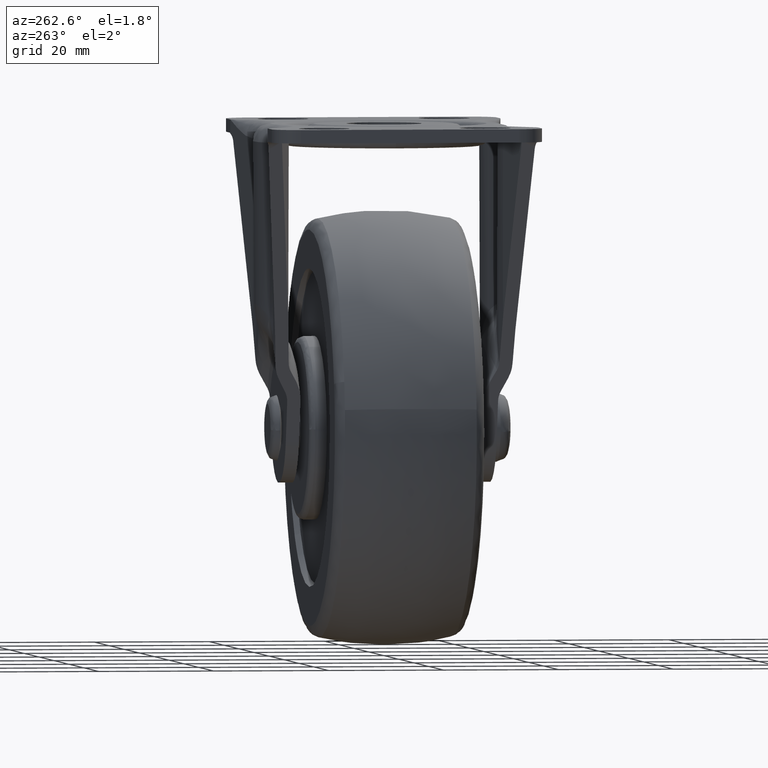
[diagram: clean part render]
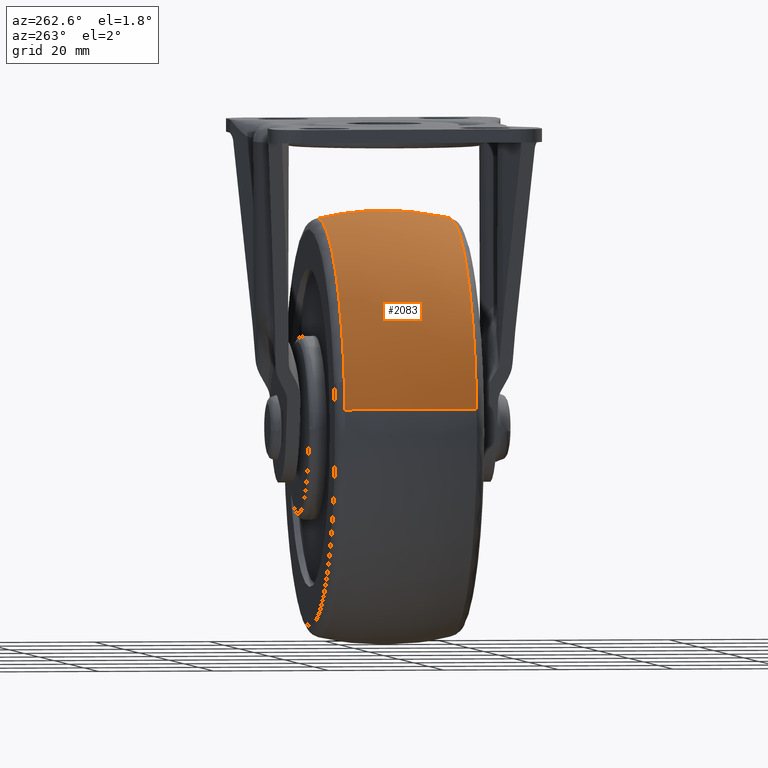
[diagram: same view with one face highlighted and labeled with its STEP entity id]
A machine part, auxiliary view. The second image highlights one B-rep face of the part: STEP entity #2083.
In plain terms, the highlighted face is a freeform B-spline surface patch.
Its self-contained STEP definition (entity closure, byte-faithful):
#1360=CARTESIAN_POINT('',(0.0,-11.458319213523890,36.169360494402703));
#1361=VERTEX_POINT('',#1360);
#1378=CARTESIAN_POINT('',(-35.927446050433097,-11.458332729247150,4.176245764173122));
#1379=VERTEX_POINT('',#1378);
#1380=CARTESIAN_POINT('',(0.0,-11.458319213523890,36.169360494402703));
#1381=CARTESIAN_POINT('',(-2.672624214457082,-11.458319774181490,36.169903045080943));
#1382=CARTESIAN_POINT('',(-6.372870764637457,-11.458320627642880,35.757297927996227));
#1383=CARTESIAN_POINT('',(-11.338458865450351,-11.458321920616161,34.413287868929359));
#1384=CARTESIAN_POINT('',(-15.311939682345640,-11.458323039353431,32.887711416428608));
#1385=CARTESIAN_POINT('',(-19.472442577682550,-11.458324337141541,30.613839318725329));
#1386=CARTESIAN_POINT('',(-23.668584247535520,-11.458325797149559,27.511762600803930));
#1387=CARTESIAN_POINT('',(-26.996166241133011,-11.458327108755340,24.228585835741040));
#1388=CARTESIAN_POINT('',(-29.735471740514551,-11.458328341139200,20.708804262151698));
#1389=CARTESIAN_POINT('',(-31.945799160597680,-11.458329469151620,17.153608198579551));
#1390=CARTESIAN_POINT('',(-33.852219878282703,-11.458330637621749,13.040597614560060));
#1391=CARTESIAN_POINT('',(-35.234169530759857,-11.458331761004510,8.579929816808301));
#1392=CARTESIAN_POINT('',(-35.761320739403693,-11.458332427313680,5.605700362971515));
#1393=CARTESIAN_POINT('',(-35.927446050433097,-11.458332729247150,4.176245764173122));
#1394=B_SPLINE_CURVE_WITH_KNOTS('',3,(#1380,#1381,#1382,#1383,#1384,#1385,#1386,#1387,#1388,#1389,#1390,#1391,#1392,#1393),.UNSPECIFIED.,.F.,.U.,(4,1,1,1,1,1,1,1,1,1,1,4),(0.000000072982743,8.017704731846230,11.101464351653640,15.418711195747560,20.763862513856679,25.286729429481721,31.042964045127441,34.743480242906017,38.649553353459531,43.583543833607500,48.311954133890552,52.629184124738742),.UNSPECIFIED.);
#1395=EDGE_CURVE('',#1361,#1379,#1394,.T.);
#1802=CARTESIAN_POINT('',(-35.033026644352752,11.458343053248250,8.994952413896838));
#1803=VERTEX_POINT('',#1802);
#1814=CARTESIAN_POINT('',(0.0,11.458330712476220,36.169357787185191));
#1815=VERTEX_POINT('',#1814);
#1816=CARTESIAN_POINT('',(0.0,11.458330712476220,36.169357787185191));
#1817=CARTESIAN_POINT('',(-1.677809546960960,11.458331061580820,36.169427508947869));
#1818=CARTESIAN_POINT('',(-5.033408185752237,11.458331803301251,35.935458703686962));
#1819=CARTESIAN_POINT('',(-9.725752756103267,11.458332964431680,34.941525226016509));
#1820=CARTESIAN_POINT('',(-14.483424526617039,11.458334264843121,33.271406223215173));
#1821=CARTESIAN_POINT('',(-19.080640699729351,11.458335662771431,30.897040048661310));
#1822=CARTESIAN_POINT('',(-23.758617655831198,11.458337272012839,27.476240529102199));
#1823=CARTESIAN_POINT('',(-28.187125556806912,11.458339026129551,22.996765045969848));
#1824=CARTESIAN_POINT('',(-31.648066935077509,11.458340698670909,17.873022957422680));
#1825=CARTESIAN_POINT('',(-33.851679530021862,11.458342064820060,12.990121713626049));
#1826=CARTESIAN_POINT('',(-34.723961804688727,11.458342765182490,10.198730289506990));
#1827=CARTESIAN_POINT('',(-35.033026644352752,11.458343053248250,8.994952413896838));
#1828=B_SPLINE_CURVE_WITH_KNOTS('',3,(#1816,#1817,#1818,#1819,#1820,#1821,#1822,#1823,#1824,#1825,#1826,#1827),.UNSPECIFIED.,.F.,.U.,(4,1,1,1,1,1,1,1,1,4),(0.000000059164343,5.033424796128323,10.066861892009170,14.354614490978580,20.133736255185930,25.539960770085081,31.691976477638519,38.962493466693630,43.995925213602092,47.724393048889262),.UNSPECIFIED.);
#1829=EDGE_CURVE('',#1815,#1803,#1828,.T.);
#1923=CARTESIAN_POINT('',(-35.927443297534452,11.458344444486150,4.176245559265347));
#1924=VERTEX_POINT('',#1923);
#1942=CARTESIAN_POINT('',(-35.033026644352752,11.458343053248250,8.994952413896838));
#1943=CARTESIAN_POINT('',(-35.439651283735067,11.458343535668011,7.411401983019481));
#1944=CARTESIAN_POINT('',(-35.738716637749640,11.458344000839009,5.800240179631593));
#1945=CARTESIAN_POINT('',(-35.927443297534452,11.458344444486150,4.176245559265347));
#1946=B_SPLINE_CURVE_WITH_KNOTS('',3,(#1942,#1943,#1944,#1945),.UNSPECIFIED.,.F.,.U.,(4,4),(4.617222E-010,4.904783692449575),.UNSPECIFIED.);
#1947=EDGE_CURVE('',#1803,#1924,#1946,.T.);
#2025=CARTESIAN_POINT('',(-35.927446050433097,-11.458332729247150,4.176245764173122));
#2026=CARTESIAN_POINT('',(-36.311247354735933,-9.817216051742529,4.220859486868710));
#2027=CARTESIAN_POINT('',(-37.021412826691169,-5.902755864638715,4.303410345270322));
#2028=CARTESIAN_POINT('',(-37.374721924107128,-0.119520687760993,4.344479622932257));
#2029=CARTESIAN_POINT('',(-37.006949031075123,5.899356566889257,4.301729108413988));
#2030=CARTESIAN_POINT('',(-36.366108217801077,9.582786183331022,4.227236704055301));
#2031=CARTESIAN_POINT('',(-35.927443297534452,11.458344444486150,4.176245559265347));
#2032=B_SPLINE_CURVE_WITH_KNOTS('',3,(#2025,#2026,#2027,#2028,#2029,#2030,#2031),.UNSPECIFIED.,.F.,.U.,(4,1,1,1,4),(2.489394E-009,5.057980704700277,11.922386873979750,17.341656814090829,23.122209084624600),.UNSPECIFIED.);
#2033=EDGE_CURVE('',#1379,#1924,#2032,.T.);
#2038=CARTESIAN_POINT('',(0.0,-11.458319213523890,36.169360494402703));
#2039=CARTESIAN_POINT('',(0.0,-8.762224963715719,36.804327265765117));
#2040=CARTESIAN_POINT('',(0.0,-4.339934173847174,37.463843563096752));
#2041=CARTESIAN_POINT('',(0.0,3.376530807502010,37.575383735329709));
#2042=CARTESIAN_POINT('',(0.0,8.293372611853680,36.914964780107233));
#2043=CARTESIAN_POINT('',(0.0,11.458330712476220,36.169357787185191));
#2044=B_SPLINE_CURVE_WITH_KNOTS('',3,(#2038,#2039,#2040,#2041,#2042,#2043),.UNSPECIFIED.,.F.,.U.,(4,1,1,4),(2.488505E-009,8.309541020364955,13.367503735974481,23.122181091744508),.UNSPECIFIED.);
#2045=EDGE_CURVE('',#1361,#1815,#2044,.T.);
#2053=CARTESIAN_POINT('',(0.0,-12.616387155055353,35.882091471470666));
#2054=CARTESIAN_POINT('',(0.0,-6.411932784898111,37.500000000000007));
#2055=CARTESIAN_POINT('',(0.0,-2.296137E-015,37.500000000000007));
#2056=CARTESIAN_POINT('',(0.0,6.411936762104636,37.500000000000007));
#2057=CARTESIAN_POINT('',(0.0,12.616394727547135,35.882089496824364));
#2058=CARTESIAN_POINT('',(-31.952704663657880,-12.616387155055351,35.882091471470673));
#2059=CARTESIAN_POINT('',(-33.393438781010396,-6.411932784898111,37.500000000000007));
#2060=CARTESIAN_POINT('',(-33.393438781010396,-2.296137E-015,37.500000000000014));
#2061=CARTESIAN_POINT('',(-33.393438781010396,6.411936762104636,37.500000000000000));
#2062=CARTESIAN_POINT('',(-31.952702905251730,12.616394727547133,35.882089496824356));
#2063=CARTESIAN_POINT('',(-35.642099082562751,-12.616387155055351,4.143098038396929));
#2064=CARTESIAN_POINT('',(-37.249186454440576,-6.411932784898111,4.329908599765269));
#2065=CARTESIAN_POINT('',(-37.249186454440576,-2.296137E-015,4.329908599765269));
#2066=CARTESIAN_POINT('',(-37.249186454440562,6.411936762104636,4.329908599765270));
#2067=CARTESIAN_POINT('',(-35.642097121123562,12.616394727547133,4.143097810395915));
#2075=(BOUNDED_SURFACE()B_SPLINE_SURFACE(2,2,((#2053,#2058,#2063),(#2054,#2059,#2064),(#2055,#2060,#2065),(#2056,#2061,#2066),(#2057,#2062,#2067)),.UNSPECIFIED.,.F.,.F.,.U.)B_SPLINE_SURFACE_WITH_KNOTS((3,2,3),(3,3),(0.0,13.169710211858000,26.339428249433968),(0.0,57.098773362883371),.UNSPECIFIED.)GEOMETRIC_REPRESENTATION_ITEM()RATIONAL_B_SPLINE_SURFACE(((0.932827959357585,0.681466494431392,0.892610124969394),(0.957985206695089,0.699844825591661,0.916682745718540),(1.0,0.730538238691624,0.956886118190660),(0.957985181729018,0.699844807352992,0.916682721828853),(0.932827929459663,0.681466472589816,0.892610096360487)))REPRESENTATION_ITEM('')SURFACE());
#2076=ORIENTED_EDGE('',*,*,#1395,.F.);
#2077=ORIENTED_EDGE('',*,*,#2045,.T.);
#2078=ORIENTED_EDGE('',*,*,#1829,.T.);
#2079=ORIENTED_EDGE('',*,*,#1947,.T.);
#2080=ORIENTED_EDGE('',*,*,#2033,.F.);
#2081=EDGE_LOOP('',(#2076,#2077,#2078,#2079,#2080));
#2082=FACE_OUTER_BOUND('',#2081,.T.);
#2083=ADVANCED_FACE('',(#2082),#2075,.T.);